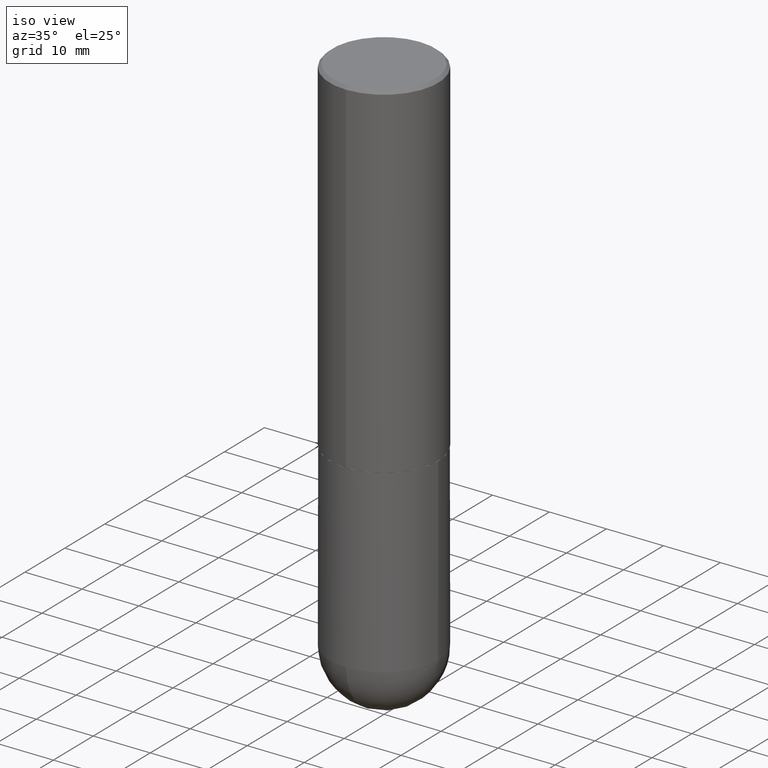
[diagram: clean part render]
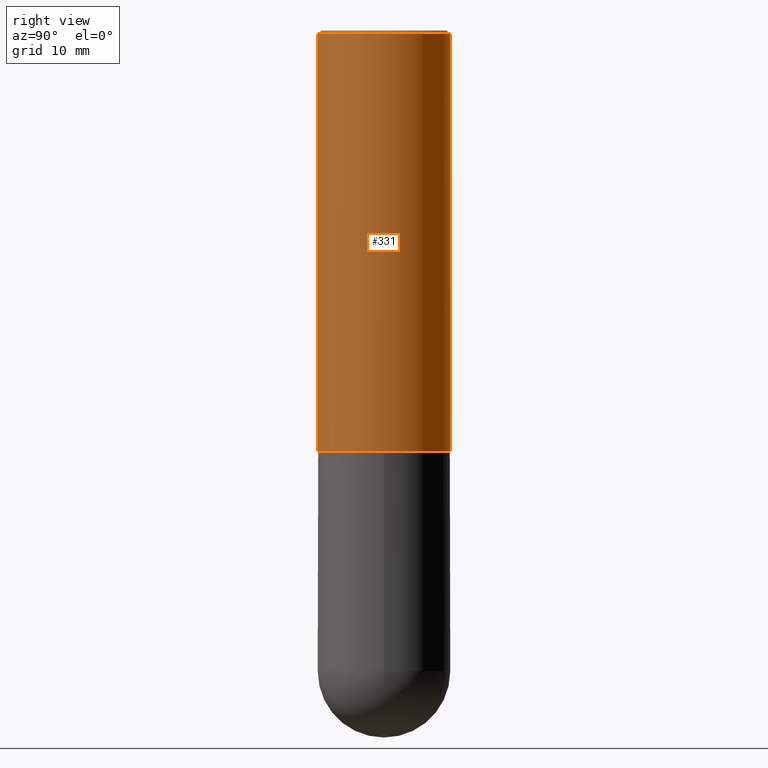
[diagram: tour spotlight — one face highlighted and labeled with its STEP entity id]
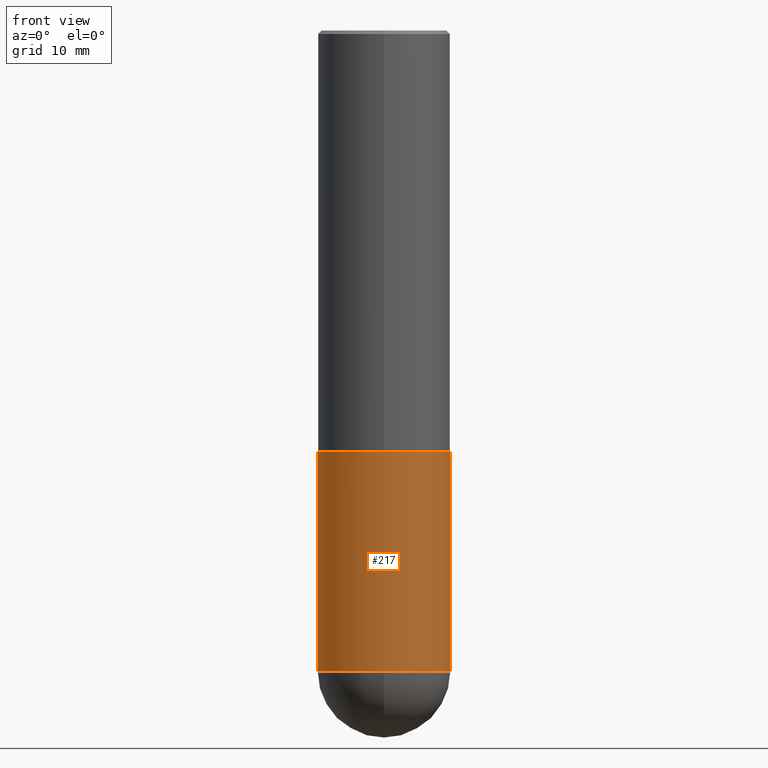
[diagram: tour spotlight — one face highlighted and labeled with its STEP entity id]
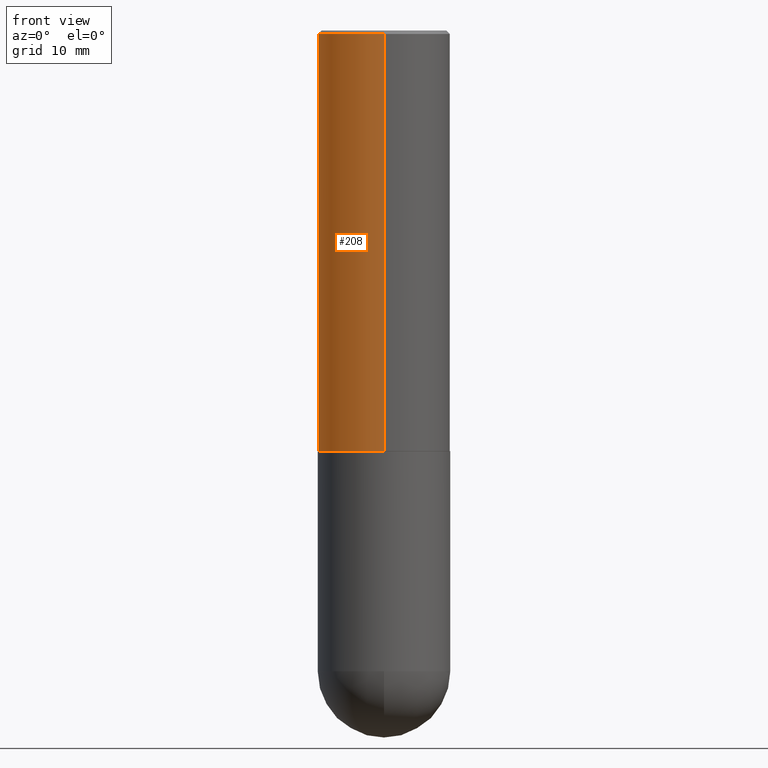
[diagram: tour spotlight — one face highlighted and labeled with its STEP entity id]
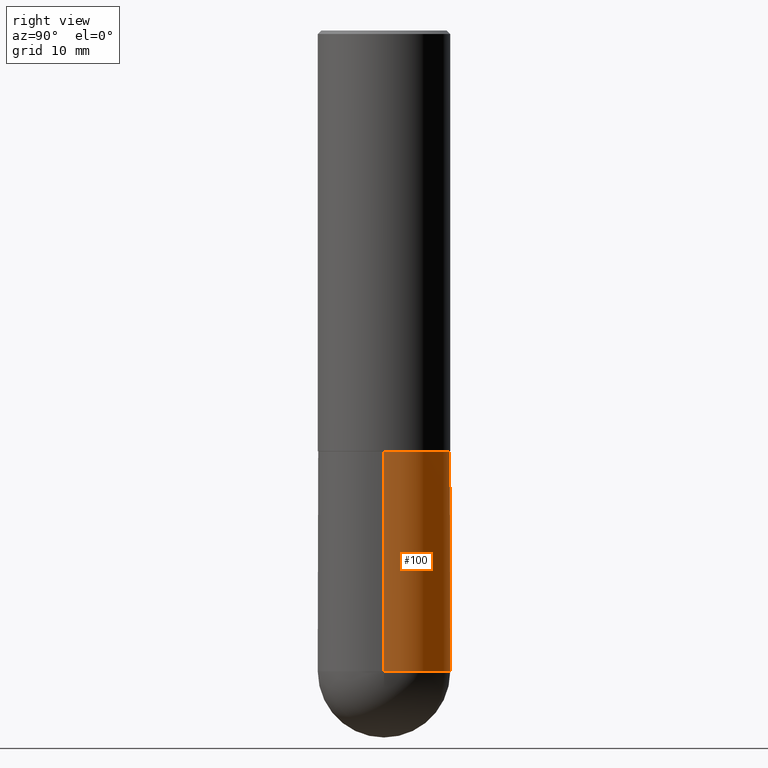
[diagram: tour spotlight — one face highlighted and labeled with its STEP entity id]
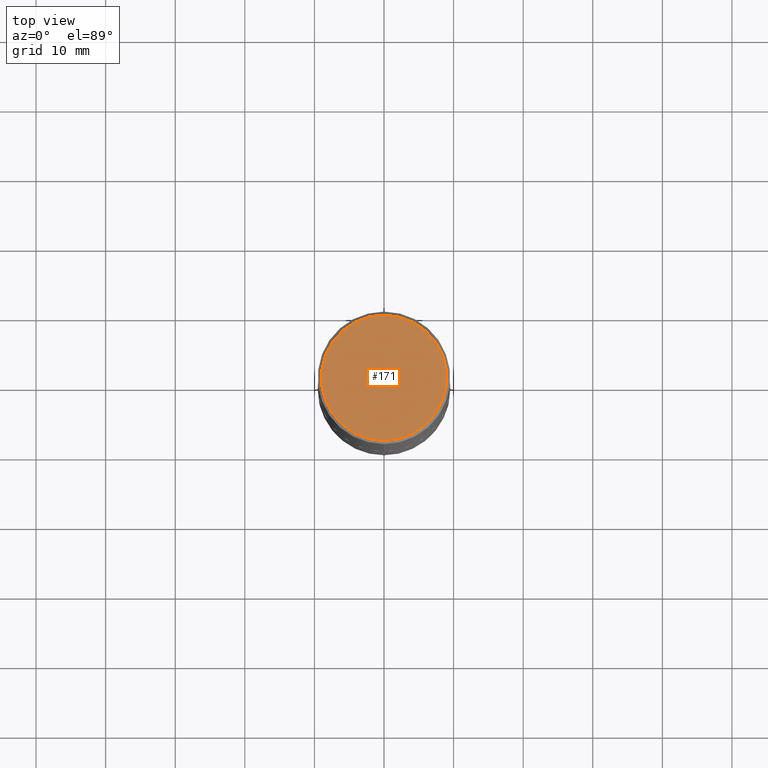
[diagram: tour spotlight — one face highlighted and labeled with its STEP entity id]
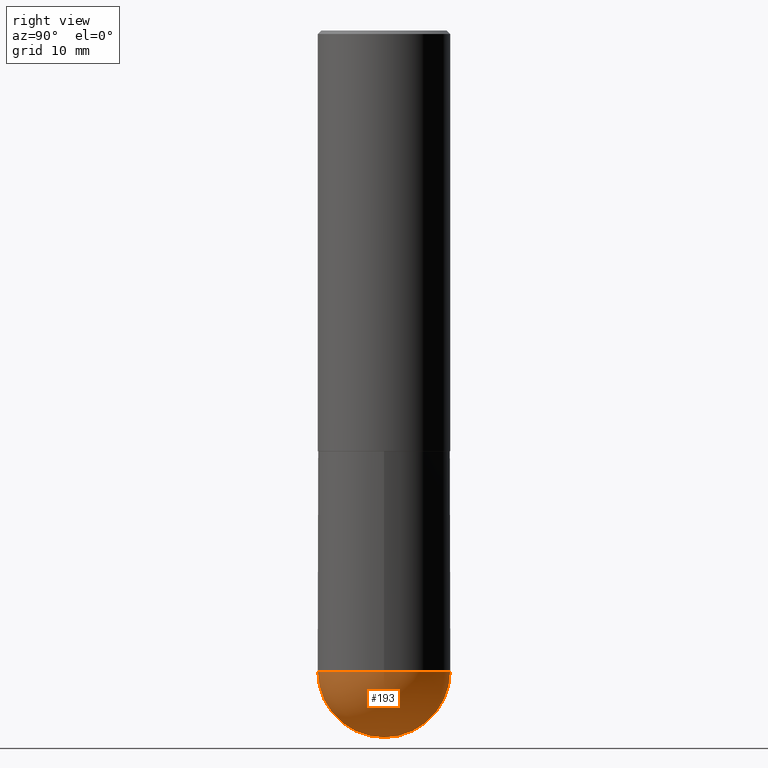
[diagram: tour spotlight — one face highlighted and labeled with its STEP entity id]
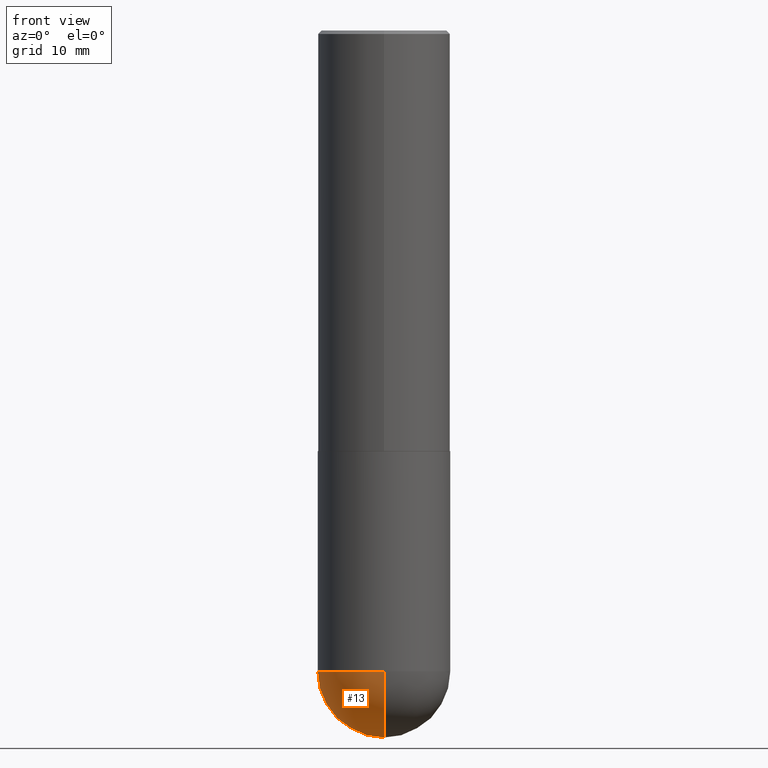
[diagram: tour spotlight — one face highlighted and labeled with its STEP entity id]
A machine part: a face-by-face anatomy tour. The part has 13 B-rep faces; the first image is the clean iso view, then the 7 largest visible faces are spotlighted one at a time (largest first), each with its STEP entity span.

Face 1 — right view, entity #331. In plain terms, the highlighted cylindrical surface (partial cylindrical patch) has radius 9.525 mm, axis along (-0, 0, 1).
Definition (entity closure, byte-faithful):
#11 = DIRECTION ( 'NONE',  ( -6.982962677686265922E-15, -1.000000000000000000, 3.494488891895536035E-15 ) ) ;
#18 = CARTESIAN_POINT ( 'NONE',  ( -2.572686749164323547E-15, -0.3750000000000001110, -0.01999999999999877570 ) ) ;
#22 = EDGE_LOOP ( 'NONE', ( #399, #141, #248, #104 ) ) ;
#27 = CIRCLE ( 'NONE', #123, 0.3750000000000000555 ) ;
#32 = CIRCLE ( 'NONE', #144, 0.3750000000000002776 ) ;
#56 = DIRECTION ( 'NONE',  ( -2.444718557308602870E-29, 3.492555737935855980E-15, 1.000000000000000000 ) ) ;
#81 = VECTOR ( 'NONE', #279, 39.37007874015748143 ) ;
#104 = ORIENTED_EDGE ( 'NONE', *, *, #339, .F. ) ;
#108 = CARTESIAN_POINT ( 'NONE',  ( -2.618611004132351200E-15, -0.3750000000000001665, 1.309708401725946436E-15 ) ) ;
#115 = DIRECTION ( 'NONE',  ( -6.982962677686266711E-15, -1.000000000000000000, 3.642463991552348591E-15 ) ) ;
#123 = AXIS2_PLACEMENT_3D ( 'NONE', #163, #130, #11 ) ;
#130 = DIRECTION ( 'NONE',  ( -2.444718557308602870E-29, 3.492555737935855980E-15, 1.000000000000000000 ) ) ;
#140 = CARTESIAN_POINT ( 'NONE',  ( 2.664535259100406068E-15, 0.3749999999999919509, -2.379000000000000892 ) ) ;
#141 = ORIENTED_EDGE ( 'NONE', *, *, #222, .T. ) ;
#144 = AXIS2_PLACEMENT_3D ( 'NONE', #301, #56, #115 ) ;
#163 = CARTESIAN_POINT ( 'NONE',  ( 4.889437114617226549E-31, -6.985111475871741345E-17, -0.02000000000000008715 ) ) ;
#179 = CARTESIAN_POINT ( 'NONE',  ( 2.664535259100376486E-15, 0.3750000000000001665, -1.309708401725946436E-15 ) ) ;
#184 = AXIS2_PLACEMENT_3D ( 'NONE', #337, #268, #369 ) ;
#191 = EDGE_CURVE ( 'NONE', #310, #370, #27, .T. ) ;
#209 = CARTESIAN_POINT ( 'NONE',  ( -2.618611004132293613E-15, -0.3750000000000086597, -2.378999999999998227 ) ) ;
#222 = EDGE_CURVE ( 'NONE', #296, #370, #356, .T. ) ;
#238 = CARTESIAN_POINT ( 'NONE',  ( 2.618611004132350411E-15, 0.3749999999999999445, -0.02000000000000139513 ) ) ;
#244 = CYLINDRICAL_SURFACE ( 'NONE', #184, 0.3750000000000001665 ) ;
#246 = FACE_OUTER_BOUND ( 'NONE', #22, .T. ) ;
#248 = ORIENTED_EDGE ( 'NONE', *, *, #191, .F. ) ;
#264 = VERTEX_POINT ( 'NONE', #209 ) ;
#268 = DIRECTION ( 'NONE',  ( -2.444718557308602870E-29, 3.492555737935855980E-15, 1.000000000000000000 ) ) ;
#279 = DIRECTION ( 'NONE',  ( -2.444718557308602870E-29, 3.492555737935856374E-15, 1.000000000000000000 ) ) ;
#286 = EDGE_CURVE ( 'NONE', #264, #296, #32, .T. ) ;
#296 = VERTEX_POINT ( 'NONE', #140 ) ;
#301 = CARTESIAN_POINT ( 'NONE',  ( 5.815985447837164627E-29, -8.308790100549400449E-15, -2.378999999999999559 ) ) ;
#310 = VERTEX_POINT ( 'NONE', #18 ) ;
#331 = ADVANCED_FACE ( 'NONE', ( #246 ), #244, .T. ) ;
#335 = DIRECTION ( 'NONE',  ( -2.444718557308602870E-29, 3.492555737935856374E-15, 1.000000000000000000 ) ) ;
#337 = CARTESIAN_POINT ( 'NONE',  ( 0.000000000000000000, 0.000000000000000000, 0.000000000000000000 ) ) ;
#339 = EDGE_CURVE ( 'NONE', #264, #310, #371, .T. ) ;
#356 = LINE ( 'NONE', #179, #81 ) ;
#369 = DIRECTION ( 'NONE',  ( -6.982962677686266711E-15, -1.000000000000000000, 3.492555737935855585E-15 ) ) ;
#370 = VERTEX_POINT ( 'NONE', #238 ) ;
#371 = LINE ( 'NONE', #108, #380 ) ;
#380 = VECTOR ( 'NONE', #335, 39.37007874015748143 ) ;
#399 = ORIENTED_EDGE ( 'NONE', *, *, #286, .T. ) ;

Face 2 — front view, entity #217. In plain terms, the highlighted cylindrical surface (partial cylindrical patch) has radius 9.525 mm, axis along (-0, 0, 1).
Definition (entity closure, byte-faithful):
#10 = VERTEX_POINT ( 'NONE', #46 ) ;
#12 = AXIS2_PLACEMENT_3D ( 'NONE', #325, #165, #232 ) ;
#14 = FACE_OUTER_BOUND ( 'NONE', #182, .T. ) ;
#20 = CARTESIAN_POINT ( 'NONE',  ( -2.664535259100290106E-15, -0.3750000000000131006, -3.624999999999998668 ) ) ;
#30 = EDGE_CURVE ( 'NONE', #10, #336, #178, .T. ) ;
#37 = VECTOR ( 'NONE', #385, 39.37007874015748143 ) ;
#42 = VERTEX_POINT ( 'NONE', #20 ) ;
#46 = CARTESIAN_POINT ( 'NONE',  ( 0.3750000000000001110, -1.310178372400889468E-14, -3.624999999999999556 ) ) ;
#49 = ORIENTED_EDGE ( 'NONE', *, *, #201, .F. ) ;
#68 = AXIS2_PLACEMENT_3D ( 'NONE', #152, #362, #303 ) ;
#75 = EDGE_CURVE ( 'NONE', #107, #42, #403, .T. ) ;
#77 = ORIENTED_EDGE ( 'NONE', *, *, #30, .T. ) ;
#84 = DIRECTION ( 'NONE',  ( -2.445468806185136597E-29, 3.491481338843145583E-15, 1.000000000000000000 ) ) ;
#99 = DIRECTION ( 'NONE',  ( 1.000000000000000000, -6.982962677686266711E-15, 0.000000000000000000 ) ) ;
#102 = LINE ( 'NONE', #262, #37 ) ;
#107 = VERTEX_POINT ( 'NONE', #119 ) ;
#118 = CARTESIAN_POINT ( 'NONE',  ( 0.3750000000000000555, -1.092833659057903675E-14, -2.379999999999999893 ) ) ;
#119 = CARTESIAN_POINT ( 'NONE',  ( -0.3750000000000001110, -7.818637460776168963E-15, -3.624999999999999556 ) ) ;
#128 = CARTESIAN_POINT ( 'NONE',  ( 5.820215758720624069E-29, -8.309725586446685153E-15, -2.379999999999999893 ) ) ;
#152 = CARTESIAN_POINT ( 'NONE',  ( 8.864824422421120163E-29, -1.265661985330640259E-14, -3.624999999999999556 ) ) ;
#160 = ORIENTED_EDGE ( 'NONE', *, *, #162, .F. ) ;
#162 = EDGE_CURVE ( 'NONE', #195, #336, #405, .T. ) ;
#165 = DIRECTION ( 'NONE',  ( -2.445468806185136597E-29, 3.491481338843145583E-15, 1.000000000000000000 ) ) ;
#178 = LINE ( 'NONE', #367, #368 ) ;
#182 = EDGE_LOOP ( 'NONE', ( #49, #328, #229, #77, #160 ) ) ;
#195 = VERTEX_POINT ( 'NONE', #386 ) ;
#201 = EDGE_CURVE ( 'NONE', #107, #195, #102, .T. ) ;
#202 = CYLINDRICAL_SURFACE ( 'NONE', #12, 0.3750000000000001110 ) ;
#217 = ADVANCED_FACE ( 'NONE', ( #14 ), #202, .T. ) ;
#224 = AXIS2_PLACEMENT_3D ( 'NONE', #278, #84, #363 ) ;
#229 = ORIENTED_EDGE ( 'NONE', *, *, #292, .T. ) ;
#231 = AXIS2_PLACEMENT_3D ( 'NONE', #128, #359, #99 ) ;
#232 = DIRECTION ( 'NONE',  ( 1.000000000000000000, -6.982962677686265922E-15, 4.876176775795935793E-29 ) ) ;
#262 = CARTESIAN_POINT ( 'NONE',  ( -0.3750000000000001110, 2.664535259100376486E-15, -1.844600658845590159E-29 ) ) ;
#278 = CARTESIAN_POINT ( 'NONE',  ( 8.864824422421120163E-29, -1.265661985330640259E-14, -3.624999999999999556 ) ) ;
#280 = CIRCLE ( 'NONE', #68, 0.3750000000000001110 ) ;
#292 = EDGE_CURVE ( 'NONE', #42, #10, #280, .T. ) ;
#303 = DIRECTION ( 'NONE',  ( 1.000000000000000000, -6.982962677686265922E-15, 0.000000000000000000 ) ) ;
#308 = DIRECTION ( 'NONE',  ( -2.445468806185136877E-29, 3.491481338843145188E-15, 1.000000000000000000 ) ) ;
#325 = CARTESIAN_POINT ( 'NONE',  ( 0.000000000000000000, 0.000000000000000000, 0.000000000000000000 ) ) ;
#328 = ORIENTED_EDGE ( 'NONE', *, *, #75, .T. ) ;
#336 = VERTEX_POINT ( 'NONE', #118 ) ;
#359 = DIRECTION ( 'NONE',  ( -2.445468806185136597E-29, 3.491481338843145583E-15, 1.000000000000000000 ) ) ;
#362 = DIRECTION ( 'NONE',  ( -2.445468806185136597E-29, 3.491481338843145583E-15, 1.000000000000000000 ) ) ;
#363 = DIRECTION ( 'NONE',  ( 1.000000000000000000, -6.982962677686265922E-15, 0.000000000000000000 ) ) ;
#367 = CARTESIAN_POINT ( 'NONE',  ( 0.3750000000000001110, -2.618611004132350411E-15, 1.828566290923476483E-29 ) ) ;
#368 = VECTOR ( 'NONE', #308, 39.37007874015748143 ) ;
#385 = DIRECTION ( 'NONE',  ( -2.445468806185136877E-29, 3.491481338843145188E-15, 1.000000000000000000 ) ) ;
#386 = CARTESIAN_POINT ( 'NONE',  ( -0.3750000000000000555, -7.818637460776167385E-15, -2.379999999999999893 ) ) ;
#403 = CIRCLE ( 'NONE', #224, 0.3750000000000001110 ) ;
#405 = CIRCLE ( 'NONE', #231, 0.3750000000000000555 ) ;

Face 3 — front view, entity #208. In plain terms, the highlighted cylindrical surface (partial cylindrical patch) has radius 9.525 mm, axis along (-0, 0, 1).
Definition (entity closure, byte-faithful):
#18 = CARTESIAN_POINT ( 'NONE',  ( -2.572686749164323547E-15, -0.3750000000000001110, -0.01999999999999877570 ) ) ;
#47 = EDGE_CURVE ( 'NONE', #370, #310, #329, .T. ) ;
#81 = VECTOR ( 'NONE', #279, 39.37007874015748143 ) ;
#91 = AXIS2_PLACEMENT_3D ( 'NONE', #297, #260, #196 ) ;
#108 = CARTESIAN_POINT ( 'NONE',  ( -2.618611004132351200E-15, -0.3750000000000001665, 1.309708401725946436E-15 ) ) ;
#109 = EDGE_CURVE ( 'NONE', #296, #264, #203, .T. ) ;
#136 = EDGE_LOOP ( 'NONE', ( #298, #276, #326, #384 ) ) ;
#140 = CARTESIAN_POINT ( 'NONE',  ( 2.664535259100406068E-15, 0.3749999999999919509, -2.379000000000000892 ) ) ;
#145 = CARTESIAN_POINT ( 'NONE',  ( 4.889437114617226549E-31, -6.985111475871741345E-17, -0.02000000000000008715 ) ) ;
#151 = DIRECTION ( 'NONE',  ( -6.982962677686265922E-15, -1.000000000000000000, 3.494488891895536035E-15 ) ) ;
#172 = CYLINDRICAL_SURFACE ( 'NONE', #91, 0.3750000000000001665 ) ;
#179 = CARTESIAN_POINT ( 'NONE',  ( 2.664535259100376486E-15, 0.3750000000000001665, -1.309708401725946436E-15 ) ) ;
#196 = DIRECTION ( 'NONE',  ( -6.982962677686266711E-15, -1.000000000000000000, 3.492555737935855585E-15 ) ) ;
#203 = CIRCLE ( 'NONE', #220, 0.3750000000000002776 ) ;
#208 = ADVANCED_FACE ( 'NONE', ( #390 ), #172, .T. ) ;
#209 = CARTESIAN_POINT ( 'NONE',  ( -2.618611004132293613E-15, -0.3750000000000086597, -2.378999999999998227 ) ) ;
#218 = DIRECTION ( 'NONE',  ( -6.982962677686266711E-15, -1.000000000000000000, 3.642463991552348591E-15 ) ) ;
#220 = AXIS2_PLACEMENT_3D ( 'NONE', #250, #372, #218 ) ;
#222 = EDGE_CURVE ( 'NONE', #296, #370, #356, .T. ) ;
#238 = CARTESIAN_POINT ( 'NONE',  ( 2.618611004132350411E-15, 0.3749999999999999445, -0.02000000000000139513 ) ) ;
#247 = AXIS2_PLACEMENT_3D ( 'NONE', #145, #274, #151 ) ;
#250 = CARTESIAN_POINT ( 'NONE',  ( 5.815985447837164627E-29, -8.308790100549400449E-15, -2.378999999999999559 ) ) ;
#260 = DIRECTION ( 'NONE',  ( -2.444718557308602870E-29, 3.492555737935855980E-15, 1.000000000000000000 ) ) ;
#264 = VERTEX_POINT ( 'NONE', #209 ) ;
#274 = DIRECTION ( 'NONE',  ( -2.444718557308602870E-29, 3.492555737935855980E-15, 1.000000000000000000 ) ) ;
#276 = ORIENTED_EDGE ( 'NONE', *, *, #109, .T. ) ;
#279 = DIRECTION ( 'NONE',  ( -2.444718557308602870E-29, 3.492555737935856374E-15, 1.000000000000000000 ) ) ;
#296 = VERTEX_POINT ( 'NONE', #140 ) ;
#297 = CARTESIAN_POINT ( 'NONE',  ( 0.000000000000000000, 0.000000000000000000, 0.000000000000000000 ) ) ;
#298 = ORIENTED_EDGE ( 'NONE', *, *, #222, .F. ) ;
#310 = VERTEX_POINT ( 'NONE', #18 ) ;
#326 = ORIENTED_EDGE ( 'NONE', *, *, #339, .T. ) ;
#329 = CIRCLE ( 'NONE', #247, 0.3750000000000000555 ) ;
#335 = DIRECTION ( 'NONE',  ( -2.444718557308602870E-29, 3.492555737935856374E-15, 1.000000000000000000 ) ) ;
#339 = EDGE_CURVE ( 'NONE', #264, #310, #371, .T. ) ;
#356 = LINE ( 'NONE', #179, #81 ) ;
#370 = VERTEX_POINT ( 'NONE', #238 ) ;
#371 = LINE ( 'NONE', #108, #380 ) ;
#372 = DIRECTION ( 'NONE',  ( -2.444718557308602870E-29, 3.492555737935855980E-15, 1.000000000000000000 ) ) ;
#380 = VECTOR ( 'NONE', #335, 39.37007874015748143 ) ;
#384 = ORIENTED_EDGE ( 'NONE', *, *, #47, .F. ) ;
#390 = FACE_OUTER_BOUND ( 'NONE', #136, .T. ) ;

Face 4 — right view, entity #100. In plain terms, the highlighted cylindrical surface (partial cylindrical patch) has radius 9.525 mm, axis along (-0, 0, 1).
Definition (entity closure, byte-faithful):
#3 = AXIS2_PLACEMENT_3D ( 'NONE', #67, #230, #7 ) ;
#7 = DIRECTION ( 'NONE',  ( 1.000000000000000000, -6.982962677686265922E-15, 0.000000000000000000 ) ) ;
#10 = VERTEX_POINT ( 'NONE', #46 ) ;
#30 = EDGE_CURVE ( 'NONE', #10, #336, #178, .T. ) ;
#35 = CARTESIAN_POINT ( 'NONE',  ( 8.864824422421120163E-29, -1.265661985330640259E-14, -3.624999999999999556 ) ) ;
#37 = VECTOR ( 'NONE', #385, 39.37007874015748143 ) ;
#38 = ORIENTED_EDGE ( 'NONE', *, *, #364, .F. ) ;
#46 = CARTESIAN_POINT ( 'NONE',  ( 0.3750000000000001110, -1.310178372400889468E-14, -3.624999999999999556 ) ) ;
#64 = CARTESIAN_POINT ( 'NONE',  ( 2.618611004132438763E-15, 0.3749999999999873990, -3.625000000000000888 ) ) ;
#67 = CARTESIAN_POINT ( 'NONE',  ( 8.864824422421120163E-29, -1.265661985330640259E-14, -3.624999999999999556 ) ) ;
#74 = AXIS2_PLACEMENT_3D ( 'NONE', #35, #289, #198 ) ;
#79 = FACE_OUTER_BOUND ( 'NONE', #340, .T. ) ;
#85 = CARTESIAN_POINT ( 'NONE',  ( 5.820215758720624069E-29, -8.309725586446685153E-15, -2.379999999999999893 ) ) ;
#86 = CARTESIAN_POINT ( 'NONE',  ( 0.000000000000000000, 0.000000000000000000, 0.000000000000000000 ) ) ;
#100 = ADVANCED_FACE ( 'NONE', ( #79 ), #210, .T. ) ;
#102 = LINE ( 'NONE', #262, #37 ) ;
#107 = VERTEX_POINT ( 'NONE', #119 ) ;
#114 = EDGE_CURVE ( 'NONE', #10, #167, #257, .T. ) ;
#118 = CARTESIAN_POINT ( 'NONE',  ( 0.3750000000000000555, -1.092833659057903675E-14, -2.379999999999999893 ) ) ;
#119 = CARTESIAN_POINT ( 'NONE',  ( -0.3750000000000001110, -7.818637460776168963E-15, -3.624999999999999556 ) ) ;
#121 = EDGE_CURVE ( 'NONE', #167, #107, #183, .T. ) ;
#129 = ORIENTED_EDGE ( 'NONE', *, *, #121, .T. ) ;
#149 = ORIENTED_EDGE ( 'NONE', *, *, #30, .F. ) ;
#154 = DIRECTION ( 'NONE',  ( -2.445468806185136597E-29, 3.491481338843145583E-15, 1.000000000000000000 ) ) ;
#167 = VERTEX_POINT ( 'NONE', #64 ) ;
#178 = LINE ( 'NONE', #367, #368 ) ;
#183 = CIRCLE ( 'NONE', #3, 0.3750000000000001110 ) ;
#195 = VERTEX_POINT ( 'NONE', #386 ) ;
#198 = DIRECTION ( 'NONE',  ( 1.000000000000000000, -6.982962677686265922E-15, 0.000000000000000000 ) ) ;
#201 = EDGE_CURVE ( 'NONE', #107, #195, #102, .T. ) ;
#204 = AXIS2_PLACEMENT_3D ( 'NONE', #85, #396, #392 ) ;
#210 = CYLINDRICAL_SURFACE ( 'NONE', #360, 0.3750000000000001110 ) ;
#230 = DIRECTION ( 'NONE',  ( -2.445468806185136597E-29, 3.491481338843145583E-15, 1.000000000000000000 ) ) ;
#257 = CIRCLE ( 'NONE', #74, 0.3750000000000001110 ) ;
#262 = CARTESIAN_POINT ( 'NONE',  ( -0.3750000000000001110, 2.664535259100376486E-15, -1.844600658845590159E-29 ) ) ;
#288 = ORIENTED_EDGE ( 'NONE', *, *, #114, .T. ) ;
#289 = DIRECTION ( 'NONE',  ( -2.445468806185136597E-29, 3.491481338843145583E-15, 1.000000000000000000 ) ) ;
#304 = CIRCLE ( 'NONE', #204, 0.3750000000000000555 ) ;
#308 = DIRECTION ( 'NONE',  ( -2.445468806185136877E-29, 3.491481338843145188E-15, 1.000000000000000000 ) ) ;
#332 = ORIENTED_EDGE ( 'NONE', *, *, #201, .T. ) ;
#336 = VERTEX_POINT ( 'NONE', #118 ) ;
#340 = EDGE_LOOP ( 'NONE', ( #129, #332, #38, #149, #288 ) ) ;
#360 = AXIS2_PLACEMENT_3D ( 'NONE', #86, #154, #406 ) ;
#364 = EDGE_CURVE ( 'NONE', #336, #195, #304, .T. ) ;
#367 = CARTESIAN_POINT ( 'NONE',  ( 0.3750000000000001110, -2.618611004132350411E-15, 1.828566290923476483E-29 ) ) ;
#368 = VECTOR ( 'NONE', #308, 39.37007874015748143 ) ;
#385 = DIRECTION ( 'NONE',  ( -2.445468806185136877E-29, 3.491481338843145188E-15, 1.000000000000000000 ) ) ;
#386 = CARTESIAN_POINT ( 'NONE',  ( -0.3750000000000000555, -7.818637460776167385E-15, -2.379999999999999893 ) ) ;
#392 = DIRECTION ( 'NONE',  ( 1.000000000000000000, -6.982962677686266711E-15, 0.000000000000000000 ) ) ;
#396 = DIRECTION ( 'NONE',  ( -2.445468806185136597E-29, 3.491481338843145583E-15, 1.000000000000000000 ) ) ;
#406 = DIRECTION ( 'NONE',  ( 1.000000000000000000, -6.982962677686265922E-15, 4.876176775795935793E-29 ) ) ;

Face 5 — top view, entity #171. In plain terms, the highlighted planar face has unit normal (0, -0, -1).
Definition (entity closure, byte-faithful):
#16 = DIRECTION ( 'NONE',  ( -6.982962677686265922E-15, -1.000000000000000000, 3.492555737935855585E-15 ) ) ;
#82 = VERTEX_POINT ( 'NONE', #342 ) ;
#111 = DIRECTION ( 'NONE',  ( -2.444718557308602870E-29, 3.492555737935855980E-15, 1.000000000000000000 ) ) ;
#132 = PLANE ( 'NONE',  #350 ) ;
#147 = CARTESIAN_POINT ( 'NONE',  ( -7.209689512759563820E-45, 1.029985329037031247E-30, 2.949087734948405910E-16 ) ) ;
#166 = FACE_OUTER_BOUND ( 'NONE', #300, .T. ) ;
#171 = ADVANCED_FACE ( 'NONE', ( #166 ), #132, .F. ) ;
#177 = AXIS2_PLACEMENT_3D ( 'NONE', #181, #242, #404 ) ;
#181 = CARTESIAN_POINT ( 'NONE',  ( -7.209689512759563820E-45, 1.029985329037031247E-30, 2.949087734948405910E-16 ) ) ;
#194 = DIRECTION ( 'NONE',  ( 6.982962677686265922E-15, 1.000000000000000000, -3.492555737935856374E-15 ) ) ;
#207 = ORIENTED_EDGE ( 'NONE', *, *, #307, .T. ) ;
#242 = DIRECTION ( 'NONE',  ( -2.444718557308602870E-29, 3.492555737935855980E-15, 1.000000000000000000 ) ) ;
#249 = CARTESIAN_POINT ( 'NONE',  ( -2.504081769186607427E-15, -0.3549999999999997047, 1.534766060462068184E-15 ) ) ;
#263 = DIRECTION ( 'NONE',  ( 2.444718557308602310E-29, -3.492555737935856374E-15, -1.000000000000000000 ) ) ;
#272 = CIRCLE ( 'NONE', #177, 0.3549999999999997047 ) ;
#300 = EDGE_LOOP ( 'NONE', ( #207, #330 ) ) ;
#307 = EDGE_CURVE ( 'NONE', #82, #321, #272, .T. ) ;
#321 = VERTEX_POINT ( 'NONE', #249 ) ;
#330 = ORIENTED_EDGE ( 'NONE', *, *, #411, .T. ) ;
#342 = CARTESIAN_POINT ( 'NONE',  ( 2.548781377355486324E-15, 0.3549999999999997047, -9.449485134723871991E-16 ) ) ;
#350 = AXIS2_PLACEMENT_3D ( 'NONE', #382, #263, #194 ) ;
#382 = CARTESIAN_POINT ( 'NONE',  ( 2.478951750578622237E-15, 0.3549999999999997047, -1.092402900219807445E-15 ) ) ;
#394 = AXIS2_PLACEMENT_3D ( 'NONE', #147, #111, #16 ) ;
#404 = DIRECTION ( 'NONE',  ( -6.982962677686265922E-15, -1.000000000000000000, 3.492555737935855585E-15 ) ) ;
#410 = CIRCLE ( 'NONE', #394, 0.3549999999999997047 ) ;
#411 = EDGE_CURVE ( 'NONE', #321, #82, #410, .T. ) ;

Face 6 — right view, entity #193. In plain terms, the highlighted spherical surface has radius 9.525 mm.
Definition (entity closure, byte-faithful):
#10 = VERTEX_POINT ( 'NONE', #46 ) ;
#20 = CARTESIAN_POINT ( 'NONE',  ( -2.664535259100290106E-15, -0.3750000000000131006, -3.624999999999998668 ) ) ;
#23 = DIRECTION ( 'NONE',  ( -7.105427357600999492E-15, -1.000000000000000000, 0.000000000000000000 ) ) ;
#24 = CARTESIAN_POINT ( 'NONE',  ( 9.466789814748773816E-29, -1.441714559602862136E-14, -4.000000000000000000 ) ) ;
#34 = VERTEX_POINT ( 'NONE', #24 ) ;
#35 = CARTESIAN_POINT ( 'NONE',  ( 8.864824422421120163E-29, -1.265661985330640259E-14, -3.624999999999999556 ) ) ;
#42 = VERTEX_POINT ( 'NONE', #20 ) ;
#43 = SPHERICAL_SURFACE ( 'NONE', #258, 0.3750000000000003886 ) ;
#44 = AXIS2_PLACEMENT_3D ( 'NONE', #277, #400, #23 ) ;
#46 = CARTESIAN_POINT ( 'NONE',  ( 0.3750000000000001110, -1.310178372400889468E-14, -3.624999999999999556 ) ) ;
#55 = EDGE_LOOP ( 'NONE', ( #66, #72, #227, #402 ) ) ;
#64 = CARTESIAN_POINT ( 'NONE',  ( 2.618611004132438763E-15, 0.3749999999999873990, -3.625000000000000888 ) ) ;
#66 = ORIENTED_EDGE ( 'NONE', *, *, #261, .F. ) ;
#68 = AXIS2_PLACEMENT_3D ( 'NONE', #152, #362, #303 ) ;
#72 = ORIENTED_EDGE ( 'NONE', *, *, #226, .T. ) ;
#74 = AXIS2_PLACEMENT_3D ( 'NONE', #35, #289, #198 ) ;
#105 = CARTESIAN_POINT ( 'NONE',  ( 8.533704644507233916E-29, -1.313080222144645289E-14, -3.624999999999999556 ) ) ;
#114 = EDGE_CURVE ( 'NONE', #10, #167, #257, .T. ) ;
#150 = CARTESIAN_POINT ( 'NONE',  ( 8.533704644507233916E-29, -1.313080222144645289E-14, -3.624999999999999556 ) ) ;
#152 = CARTESIAN_POINT ( 'NONE',  ( 8.864824422421120163E-29, -1.265661985330640259E-14, -3.624999999999999556 ) ) ;
#153 = AXIS2_PLACEMENT_3D ( 'NONE', #150, #333, #174 ) ;
#167 = VERTEX_POINT ( 'NONE', #64 ) ;
#169 = DIRECTION ( 'NONE',  ( -1.000000000000000000, 6.982962677686266711E-15, -4.883557194083113462E-29 ) ) ;
#174 = DIRECTION ( 'NONE',  ( 6.982962677686265922E-15, 1.000000000000000000, 0.000000000000000000 ) ) ;
#193 = ADVANCED_FACE ( 'NONE', ( #200 ), #43, .T. ) ;
#198 = DIRECTION ( 'NONE',  ( 1.000000000000000000, -6.982962677686265922E-15, 0.000000000000000000 ) ) ;
#200 = FACE_OUTER_BOUND ( 'NONE', #55, .T. ) ;
#226 = EDGE_CURVE ( 'NONE', #34, #167, #353, .T. ) ;
#227 = ORIENTED_EDGE ( 'NONE', *, *, #114, .F. ) ;
#235 = DIRECTION ( 'NONE',  ( 6.982962677686266711E-15, 1.000000000000000000, -2.913971193241878005E-15 ) ) ;
#252 = CIRCLE ( 'NONE', #44, 0.3750000000000003886 ) ;
#257 = CIRCLE ( 'NONE', #74, 0.3750000000000001110 ) ;
#258 = AXIS2_PLACEMENT_3D ( 'NONE', #105, #169, #235 ) ;
#261 = EDGE_CURVE ( 'NONE', #34, #42, #252, .T. ) ;
#277 = CARTESIAN_POINT ( 'NONE',  ( 8.533704644507233916E-29, -1.313080222144645289E-14, -3.624999999999999556 ) ) ;
#280 = CIRCLE ( 'NONE', #68, 0.3750000000000001110 ) ;
#289 = DIRECTION ( 'NONE',  ( -2.445468806185136597E-29, 3.491481338843145583E-15, 1.000000000000000000 ) ) ;
#292 = EDGE_CURVE ( 'NONE', #42, #10, #280, .T. ) ;
#303 = DIRECTION ( 'NONE',  ( 1.000000000000000000, -6.982962677686265922E-15, 0.000000000000000000 ) ) ;
#333 = DIRECTION ( 'NONE',  ( 1.000000000000000000, -6.982962677686265922E-15, 4.883557194083112340E-29 ) ) ;
#353 = CIRCLE ( 'NONE', #153, 0.3750000000000003886 ) ;
#362 = DIRECTION ( 'NONE',  ( -2.445468806185136597E-29, 3.491481338843145583E-15, 1.000000000000000000 ) ) ;
#400 = DIRECTION ( 'NONE',  ( -1.000000000000000000, 7.105427357601001070E-15, -4.926315508542082329E-29 ) ) ;
#402 = ORIENTED_EDGE ( 'NONE', *, *, #292, .F. ) ;

Face 7 — front view, entity #13. In plain terms, the highlighted spherical surface has radius 9.525 mm.
Definition (entity closure, byte-faithful):
#3 = AXIS2_PLACEMENT_3D ( 'NONE', #67, #230, #7 ) ;
#7 = DIRECTION ( 'NONE',  ( 1.000000000000000000, -6.982962677686265922E-15, 0.000000000000000000 ) ) ;
#8 = ORIENTED_EDGE ( 'NONE', *, *, #261, .T. ) ;
#13 = ADVANCED_FACE ( 'NONE', ( #334 ), #302, .T. ) ;
#20 = CARTESIAN_POINT ( 'NONE',  ( -2.664535259100290106E-15, -0.3750000000000131006, -3.624999999999998668 ) ) ;
#23 = DIRECTION ( 'NONE',  ( -7.105427357600999492E-15, -1.000000000000000000, 0.000000000000000000 ) ) ;
#24 = CARTESIAN_POINT ( 'NONE',  ( 9.466789814748773816E-29, -1.441714559602862136E-14, -4.000000000000000000 ) ) ;
#34 = VERTEX_POINT ( 'NONE', #24 ) ;
#42 = VERTEX_POINT ( 'NONE', #20 ) ;
#44 = AXIS2_PLACEMENT_3D ( 'NONE', #277, #400, #23 ) ;
#54 = CARTESIAN_POINT ( 'NONE',  ( 8.533704644507233916E-29, -1.313080222144645289E-14, -3.624999999999999556 ) ) ;
#64 = CARTESIAN_POINT ( 'NONE',  ( 2.618611004132438763E-15, 0.3749999999999873990, -3.625000000000000888 ) ) ;
#67 = CARTESIAN_POINT ( 'NONE',  ( 8.864824422421120163E-29, -1.265661985330640259E-14, -3.624999999999999556 ) ) ;
#75 = EDGE_CURVE ( 'NONE', #107, #42, #403, .T. ) ;
#84 = DIRECTION ( 'NONE',  ( -2.445468806185136597E-29, 3.491481338843145583E-15, 1.000000000000000000 ) ) ;
#107 = VERTEX_POINT ( 'NONE', #119 ) ;
#119 = CARTESIAN_POINT ( 'NONE',  ( -0.3750000000000001110, -7.818637460776168963E-15, -3.624999999999999556 ) ) ;
#121 = EDGE_CURVE ( 'NONE', #167, #107, #183, .T. ) ;
#143 = AXIS2_PLACEMENT_3D ( 'NONE', #54, #205, #180 ) ;
#150 = CARTESIAN_POINT ( 'NONE',  ( 8.533704644507233916E-29, -1.313080222144645289E-14, -3.624999999999999556 ) ) ;
#153 = AXIS2_PLACEMENT_3D ( 'NONE', #150, #333, #174 ) ;
#167 = VERTEX_POINT ( 'NONE', #64 ) ;
#174 = DIRECTION ( 'NONE',  ( 6.982962677686265922E-15, 1.000000000000000000, 0.000000000000000000 ) ) ;
#175 = ORIENTED_EDGE ( 'NONE', *, *, #75, .F. ) ;
#180 = DIRECTION ( 'NONE',  ( 6.982962677686266711E-15, 1.000000000000000000, -2.913971193241878005E-15 ) ) ;
#183 = CIRCLE ( 'NONE', #3, 0.3750000000000001110 ) ;
#205 = DIRECTION ( 'NONE',  ( -1.000000000000000000, 6.982962677686266711E-15, -4.883557194083113462E-29 ) ) ;
#215 = EDGE_LOOP ( 'NONE', ( #324, #8, #175, #237 ) ) ;
#224 = AXIS2_PLACEMENT_3D ( 'NONE', #278, #84, #363 ) ;
#226 = EDGE_CURVE ( 'NONE', #34, #167, #353, .T. ) ;
#230 = DIRECTION ( 'NONE',  ( -2.445468806185136597E-29, 3.491481338843145583E-15, 1.000000000000000000 ) ) ;
#237 = ORIENTED_EDGE ( 'NONE', *, *, #121, .F. ) ;
#252 = CIRCLE ( 'NONE', #44, 0.3750000000000003886 ) ;
#261 = EDGE_CURVE ( 'NONE', #34, #42, #252, .T. ) ;
#277 = CARTESIAN_POINT ( 'NONE',  ( 8.533704644507233916E-29, -1.313080222144645289E-14, -3.624999999999999556 ) ) ;
#278 = CARTESIAN_POINT ( 'NONE',  ( 8.864824422421120163E-29, -1.265661985330640259E-14, -3.624999999999999556 ) ) ;
#302 = SPHERICAL_SURFACE ( 'NONE', #143, 0.3750000000000003886 ) ;
#324 = ORIENTED_EDGE ( 'NONE', *, *, #226, .F. ) ;
#333 = DIRECTION ( 'NONE',  ( 1.000000000000000000, -6.982962677686265922E-15, 4.883557194083112340E-29 ) ) ;
#334 = FACE_OUTER_BOUND ( 'NONE', #215, .T. ) ;
#353 = CIRCLE ( 'NONE', #153, 0.3750000000000003886 ) ;
#363 = DIRECTION ( 'NONE',  ( 1.000000000000000000, -6.982962677686265922E-15, 0.000000000000000000 ) ) ;
#400 = DIRECTION ( 'NONE',  ( -1.000000000000000000, 7.105427357601001070E-15, -4.926315508542082329E-29 ) ) ;
#403 = CIRCLE ( 'NONE', #224, 0.3750000000000001110 ) ;